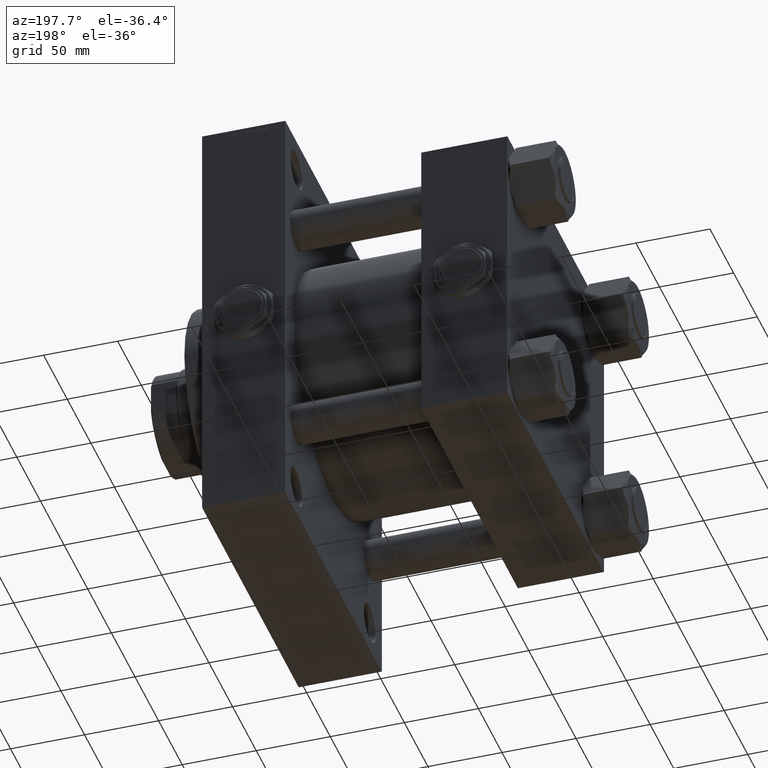
[diagram: clean part render]
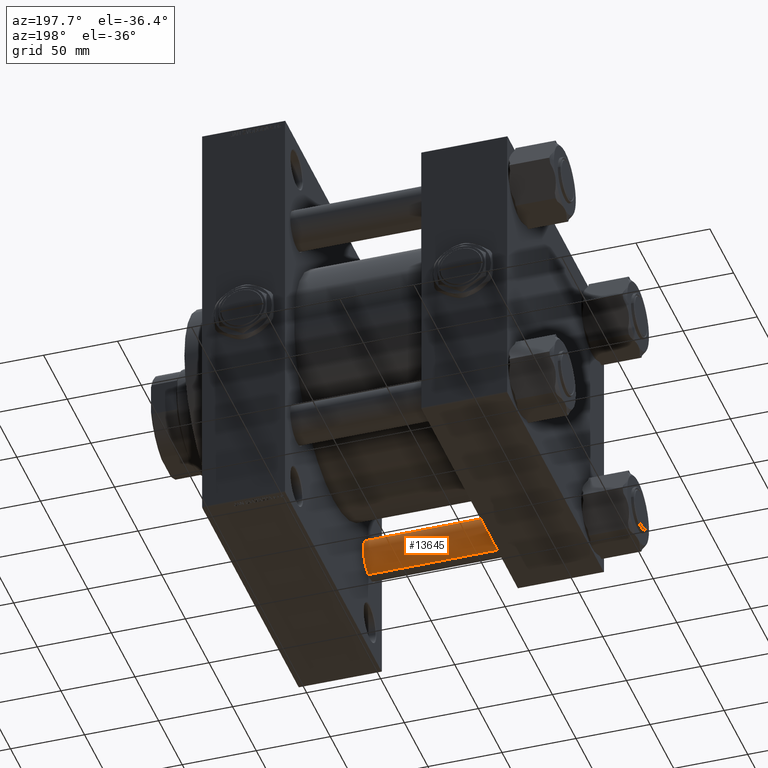
[diagram: same view with one face highlighted and labeled with its STEP entity id]
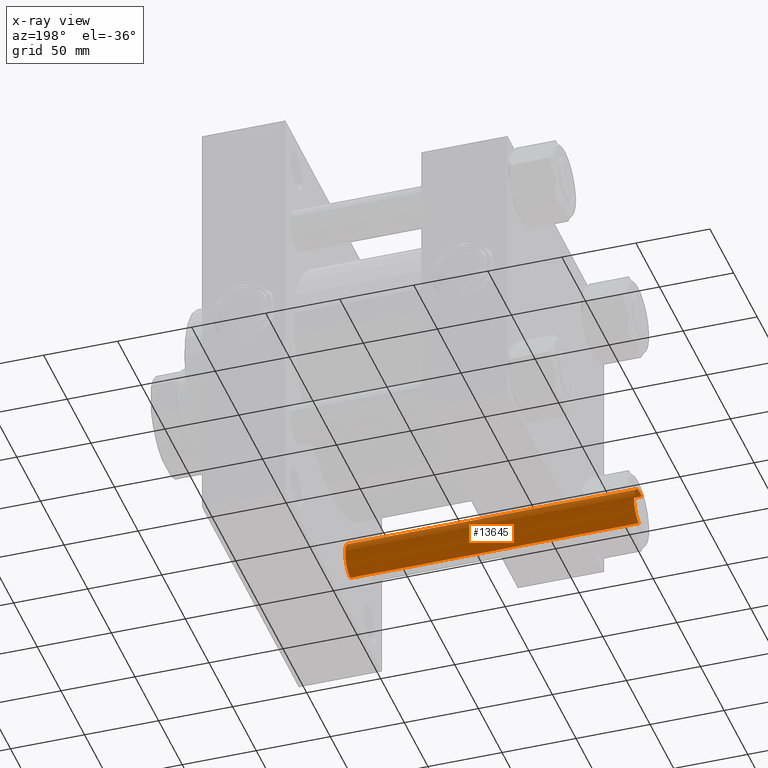
[diagram: x-ray of the same camera — body ghosted, the highlighted face saturated]
A machine part, auxiliary view. The second image highlights one B-rep face of the part: STEP entity #13645.
The next image is the same camera in x-ray: the body ghosted, the highlighted face saturated — about 3% of this face is hidden behind the body in this view.
In plain terms, the highlighted cylindrical surface (edge-blend (fillet) strip) has radius 13.5 mm, axis along (-1, 0, 0).
Its self-contained STEP definition (entity closure, byte-faithful):
#986 = VERTEX_POINT ( 'NONE', #8923 ) ;
#1401 = DIRECTION ( 'NONE',  ( -0.000000000000000000, -0.000000000000000000, 1.000000000000000000 ) ) ;
#1598 = FACE_OUTER_BOUND ( 'NONE', #47894, .T. ) ;
#2109 = VERTEX_POINT ( 'NONE', #7367 ) ;
#2277 = DIRECTION ( 'NONE',  ( 0.000000000000000000, 0.000000000000000000, -1.000000000000000000 ) ) ;
#4680 = CARTESIAN_POINT ( 'NONE',  ( 0.000000000000000000, 0.000000000000000000, 0.4999999999999726885 ) ) ;
#5235 = CARTESIAN_POINT ( 'NONE',  ( -13.50000000000000000, 0.000000000000000000, 0.4999999999999726885 ) ) ;
#6118 = DIRECTION ( 'NONE',  ( -1.000000000000000000, 0.000000000000000000, 0.000000000000000000 ) ) ;
#7367 = CARTESIAN_POINT ( 'NONE',  ( -13.50000000000000000, 0.000000000000000000, 195.5000000000000284 ) ) ;
#8905 = AXIS2_PLACEMENT_3D ( 'NONE', #14349, #2277, #28737 ) ;
#8923 = CARTESIAN_POINT ( 'NONE',  ( 13.50000000000000000, 1.653273178848926867E-15, 195.5000000000000284 ) ) ;
#12200 = EDGE_CURVE ( 'NONE', #986, #43311, #41964, .T. ) ;
#13645 = ADVANCED_FACE ( 'NONE', ( #1598 ), #28801, .T. ) ;
#14349 = CARTESIAN_POINT ( 'NONE',  ( 0.000000000000000000, 0.000000000000000000, 195.5000000000000284 ) ) ;
#19911 = LINE ( 'NONE', #46860, #38318 ) ;
#20039 = DIRECTION ( 'NONE',  ( 1.000000000000000000, 0.000000000000000000, 0.000000000000000000 ) ) ;
#21150 = ORIENTED_EDGE ( 'NONE', *, *, #12200, .F. ) ;
#24604 = EDGE_CURVE ( 'NONE', #986, #2109, #39455, .T. ) ;
#25750 = VERTEX_POINT ( 'NONE', #5235 ) ;
#26110 = CARTESIAN_POINT ( 'NONE',  ( 13.50000000000000000, 1.653273178848926867E-15, 196.0000000000000000 ) ) ;
#28737 = DIRECTION ( 'NONE',  ( 1.000000000000000000, 0.000000000000000000, 0.000000000000000000 ) ) ;
#28801 = CYLINDRICAL_SURFACE ( 'NONE', #38404, 13.50000000000000000 ) ;
#32754 = DIRECTION ( 'NONE',  ( -0.000000000000000000, -0.000000000000000000, -1.000000000000000000 ) ) ;
#35082 = CIRCLE ( 'NONE', #46365, 13.50000000000000000 ) ;
#35801 = ORIENTED_EDGE ( 'NONE', *, *, #24604, .T. ) ;
#36599 = CARTESIAN_POINT ( 'NONE',  ( 0.000000000000000000, 0.000000000000000000, 196.0000000000000000 ) ) ;
#37440 = DIRECTION ( 'NONE',  ( -0.000000000000000000, -0.000000000000000000, -1.000000000000000000 ) ) ;
#37879 = ORIENTED_EDGE ( 'NONE', *, *, #46178, .T. ) ;
#38318 = VECTOR ( 'NONE', #32754, 1000.000000000000000 ) ;
#38404 = AXIS2_PLACEMENT_3D ( 'NONE', #36599, #44163, #6118 ) ;
#39455 = CIRCLE ( 'NONE', #8905, 13.50000000000000000 ) ;
#40287 = ORIENTED_EDGE ( 'NONE', *, *, #42699, .T. ) ;
#41964 = LINE ( 'NONE', #26110, #43170 ) ;
#42699 = EDGE_CURVE ( 'NONE', #2109, #25750, #19911, .T. ) ;
#43170 = VECTOR ( 'NONE', #37440, 1000.000000000000000 ) ;
#43311 = VERTEX_POINT ( 'NONE', #45618 ) ;
#44163 = DIRECTION ( 'NONE',  ( -0.000000000000000000, -0.000000000000000000, -1.000000000000000000 ) ) ;
#45618 = CARTESIAN_POINT ( 'NONE',  ( 13.50000000000000000, 1.653273178848926867E-15, 0.4999999999999726885 ) ) ;
#46178 = EDGE_CURVE ( 'NONE', #25750, #43311, #35082, .T. ) ;
#46365 = AXIS2_PLACEMENT_3D ( 'NONE', #4680, #1401, #20039 ) ;
#46860 = CARTESIAN_POINT ( 'NONE',  ( -13.50000000000000000, 0.000000000000000000, 196.0000000000000000 ) ) ;
#47894 = EDGE_LOOP ( 'NONE', ( #21150, #35801, #40287, #37879 ) ) ;